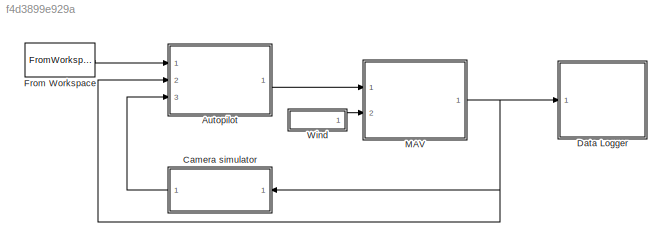
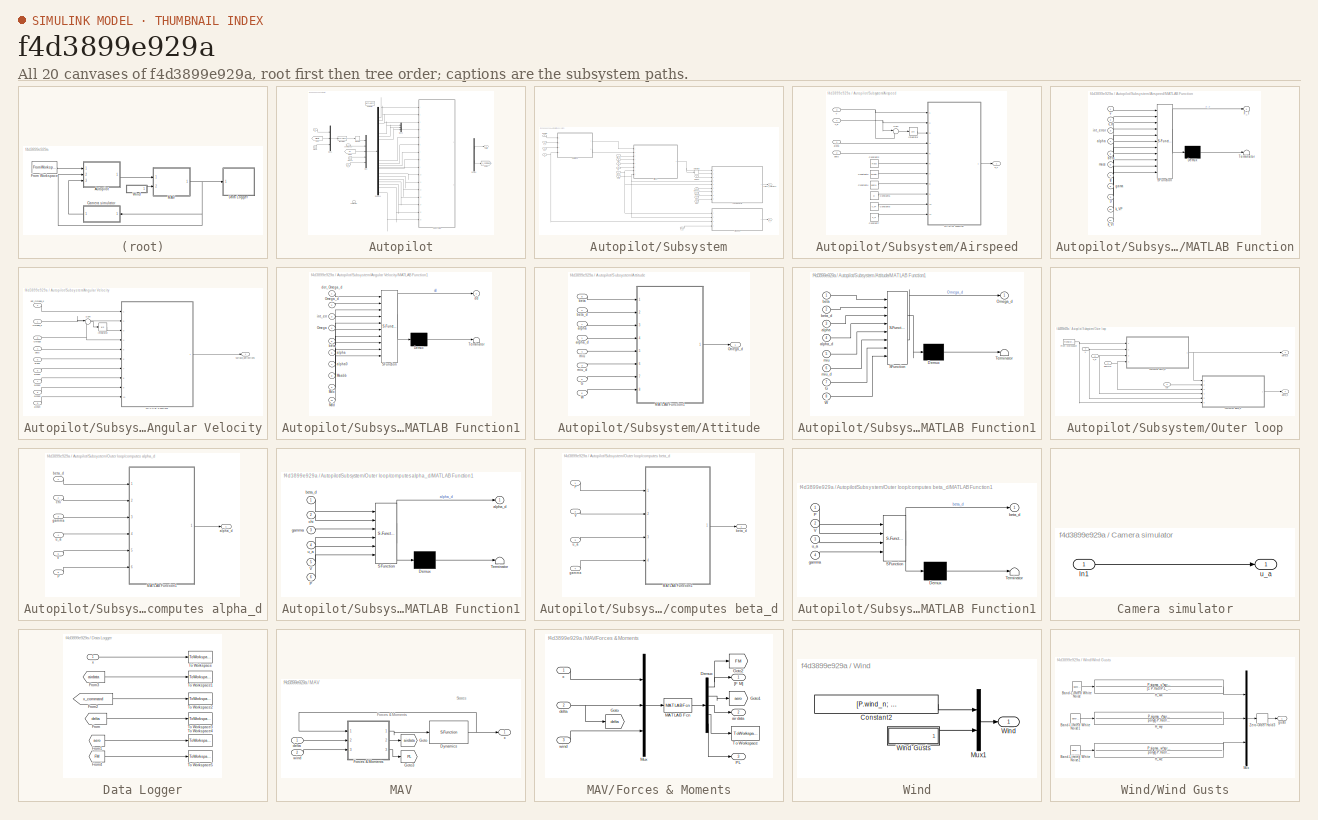
[diagram: thumbnail index - all 20 canvases of the model, root first then tree order]
MODEL slx_f4d3899e929a
KIND model
CONFIG AbsTol = 1e-3
CONFIG EnableMultiTasking = on
CONFIG FixedStep = P.Ts
CONFIG MaxStep = auto
CONFIG MinStep = auto
CONFIG RelTol = 1e-6
CONFIG SampleTimeConstraint = Unconstrained
CONFIG SolverName = ode4
CONFIG StartTime = 0.0
CONFIG StopTime = T
BLOCK [SubSystem] Autopilot
  Ports = [3, 1]
  RequestExecContextInheritance = off
BLOCK [Clock] Autopilot/Clock
BLOCK [Clock] Autopilot/Clock1
BLOCK [Demux] Autopilot/Demux
  Outputs = [4;2]
  Ports = [1, 2]
BLOCK [Demux] Autopilot/Demux1
  Outputs = 19+1+10+1+1
  Ports = [1, 32]
BLOCK [From] Autopilot/From
  GotoTag = airdata
  TagVisibility = global
BLOCK [From] Autopilot/From1
  GotoTag = PL
  TagVisibility = global
BLOCK [Goto] Autopilot/Goto1
  GotoTag = x_command
  TagVisibility = global
BLOCK [Memory] Autopilot/Memory
BLOCK [Mux] Autopilot/Mux
  DisplayOption = bar
  Inputs = 5
  Ports = [5, 1]
BLOCK [Mux] Autopilot/Mux1
  DisplayOption = bar
  Inputs = 3
  Ports = [3, 1]
BLOCK [Mux] Autopilot/Mux2
  DisplayOption = bar
  Inputs = 3
  Ports = [3, 1]
BLOCK [SubSystem] Autopilot/Subsystem
  Ports = [16, 2]
  RequestExecContextInheritance = off
BLOCK [SubSystem] Autopilot/Subsystem/Airspeed
  Ports = [4, 1]
  RequestExecContextInheritance = off
BLOCK [Constant] Autopilot/Subsystem/Airspeed/Constant2
  Value = mass
BLOCK [Constant] Autopilot/Subsystem/Airspeed/Constant3
  Value = gravity
BLOCK [Constant] Autopilot/Subsystem/Airspeed/Constant4
  Value = gama
BLOCK [Constant] Autopilot/Subsystem/Airspeed/Constant5
  Value = D
BLOCK [Constant] Autopilot/Subsystem/Airspeed/Constant6
  Value = k_VP
BLOCK [Constant] Autopilot/Subsystem/Airspeed/Constant7
  Value = k_VI
BLOCK [Outport] Autopilot/Subsystem/Airspeed/F_T 
  VectorParamsAs1DForOutWhenUnconnected = off
BLOCK [Integrator] Autopilot/Subsystem/Airspeed/Integrator
  Ports = [1, 1]
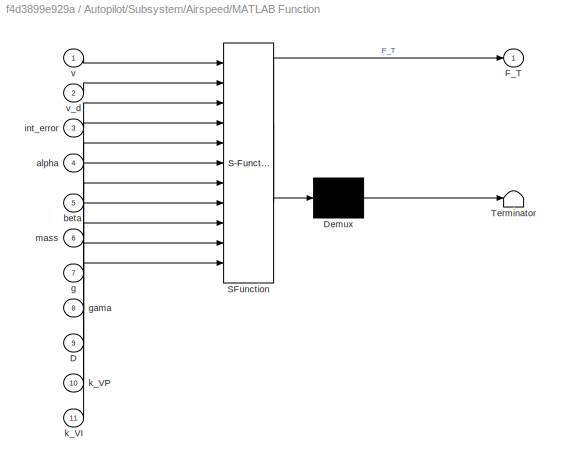
BLOCK [SubSystem] Autopilot/Subsystem/Airspeed/MATLAB Function
  ErrorFcn = Stateflow.Translate.translate
  PermitHierarchicalResolution = ExplicitOnly
  Ports = [11, 1]
  RequestExecContextInheritance = off
  SFBlockType = MATLAB Function
  TreatAsAtomicUnit = on
BLOCK [Demux] Autopilot/Subsystem/Airspeed/MATLAB Function/ Demux 
  Outputs = 1
  Ports = [1, 1]
BLOCK [S-Function] Autopilot/Subsystem/Airspeed/MATLAB Function/ SFunction 
  EnableBusSupport = off
  FunctionName = sf_sfun
  PortCounts = [11 2]
  Ports = [11, 2]
  SFcnIsStateOwnerBlock = off
  SFunctionDeploymentMode = off
  Tag = Stateflow S-Function 6
BLOCK [Terminator] Autopilot/Subsystem/Airspeed/MATLAB Function/ Terminator 
BLOCK [Inport] Autopilot/Subsystem/Airspeed/MATLAB Function/D
  Port = 9
BLOCK [Outport] Autopilot/Subsystem/Airspeed/MATLAB Function/F_T
  VectorParamsAs1DForOutWhenUnconnected = off
BLOCK [Inport] Autopilot/Subsystem/Airspeed/MATLAB Function/alpha
  Port = 4
BLOCK [Inport] Autopilot/Subsystem/Airspeed/MATLAB Function/beta
  Port = 5
BLOCK [Inport] Autopilot/Subsystem/Airspeed/MATLAB Function/g
  Port = 7
BLOCK [Inport] Autopilot/Subsystem/Airspeed/MATLAB Function/gama
  Port = 8
BLOCK [Inport] Autopilot/Subsystem/Airspeed/MATLAB Function/int_error
  Port = 3
BLOCK [Inport] Autopilot/Subsystem/Airspeed/MATLAB Function/k_VI
  Port = 11
BLOCK [Inport] Autopilot/Subsystem/Airspeed/MATLAB Function/k_VP
  Port = 10
BLOCK [Inport] Autopilot/Subsystem/Airspeed/MATLAB Function/mass
  Port = 6
BLOCK [Inport] Autopilot/Subsystem/Airspeed/MATLAB Function/v
BLOCK [Inport] Autopilot/Subsystem/Airspeed/MATLAB Function/v_d
  Port = 2
BLOCK [Sum] Autopilot/Subsystem/Airspeed/Sum
  Inputs = |-+
  Ports = [2, 1]
BLOCK [Inport] Autopilot/Subsystem/Airspeed/alpha
BLOCK [Inport] Autopilot/Subsystem/Airspeed/beta
  Port = 2
BLOCK [Inport] Autopilot/Subsystem/Airspeed/v 
  Port = 3
BLOCK [Inport] Autopilot/Subsystem/Airspeed/v_d
  Port = 4
BLOCK [SubSystem] Autopilot/Subsystem/Angular Velocity
  Ports = [9, 1]
  RequestExecContextInheritance = off
BLOCK [Integrator] Autopilot/Subsystem/Angular Velocity/Integrator
  Ports = [1, 1]
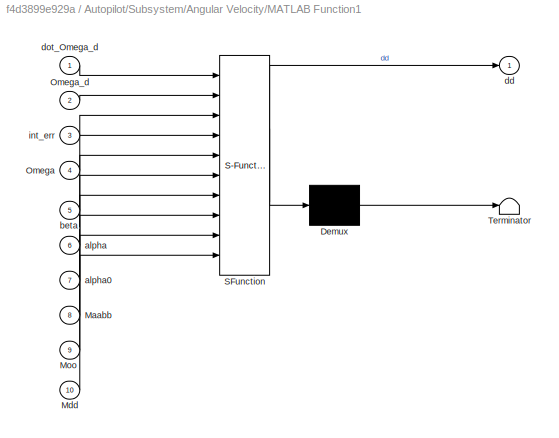
BLOCK [SubSystem] Autopilot/Subsystem/Angular Velocity/MATLAB Function1
  ErrorFcn = Stateflow.Translate.translate
  PermitHierarchicalResolution = ExplicitOnly
  Ports = [10, 1]
  RequestExecContextInheritance = off
  SFBlockType = MATLAB Function
  TreatAsAtomicUnit = on
BLOCK [Demux] Autopilot/Subsystem/Angular Velocity/MATLAB Function1/ Demux 
  Outputs = 1
  Ports = [1, 1]
BLOCK [S-Function] Autopilot/Subsystem/Angular Velocity/MATLAB Function1/ SFunction 
  EnableBusSupport = off
  FunctionName = sf_sfun
  PortCounts = [10 2]
  Ports = [10, 2]
  SFcnIsStateOwnerBlock = off
  SFunctionDeploymentMode = off
  Tag = Stateflow S-Function 7
BLOCK [Terminator] Autopilot/Subsystem/Angular Velocity/MATLAB Function1/ Terminator 
BLOCK [Inport] Autopilot/Subsystem/Angular Velocity/MATLAB Function1/Maabb
  Port = 8
BLOCK [Inport] Autopilot/Subsystem/Angular Velocity/MATLAB Function1/Mdd
  Port = 10
BLOCK [Inport] Autopilot/Subsystem/Angular Velocity/MATLAB Function1/Moo
  Port = 9
BLOCK [Inport] Autopilot/Subsystem/Angular Velocity/MATLAB Function1/Omega
  Port = 4
BLOCK [Inport] Autopilot/Subsystem/Angular Velocity/MATLAB Function1/Omega_d
  Port = 2
BLOCK [Inport] Autopilot/Subsystem/Angular Velocity/MATLAB Function1/alpha
  Port = 6
BLOCK [Inport] Autopilot/Subsystem/Angular Velocity/MATLAB Function1/alpha0
  Port = 7
BLOCK [Inport] Autopilot/Subsystem/Angular Velocity/MATLAB Function1/beta
  Port = 5
BLOCK [Outport] Autopilot/Subsystem/Angular Velocity/MATLAB Function1/dd
  VectorParamsAs1DForOutWhenUnconnected = off
BLOCK [Inport] Autopilot/Subsystem/Angular Velocity/MATLAB Function1/dot_Omega_d
BLOCK [Inport] Autopilot/Subsystem/Angular Velocity/MATLAB Function1/int_err
  Port = 3
BLOCK [Inport] Autopilot/Subsystem/Angular Velocity/Omega
  Port = 3
BLOCK [Inport] Autopilot/Subsystem/Angular Velocity/Omega_d
BLOCK [Sum] Autopilot/Subsystem/Angular Velocity/Sum
  Inputs = |-+
  Ports = [2, 1]
BLOCK [Inport] Autopilot/Subsystem/Angular Velocity/alpha
  Port = 5
BLOCK [Inport] Autopilot/Subsystem/Angular Velocity/alpha1
  Port = 6
BLOCK [Inport] Autopilot/Subsystem/Angular Velocity/alpha2
  Port = 7
BLOCK [Inport] Autopilot/Subsystem/Angular Velocity/alpha3
  Port = 8
BLOCK [Inport] Autopilot/Subsystem/Angular Velocity/alpha4
  Port = 9
BLOCK [Inport] Autopilot/Subsystem/Angular Velocity/beta
  Port = 4
BLOCK [Inport] Autopilot/Subsystem/Angular Velocity/dot_Omega_d
  Port = 2
BLOCK [Outport] Autopilot/Subsystem/Angular Velocity/surface_deflections
  VectorParamsAs1DForOutWhenUnconnected = off
BLOCK [SubSystem] Autopilot/Subsystem/Attitude
  Ports = [8, 1]
  RequestExecContextInheritance = off
BLOCK [Inport] Autopilot/Subsystem/Attitude/G
  Port = 5
BLOCK [SubSystem] Autopilot/Subsystem/Attitude/MATLAB Function1
  ErrorFcn = Stateflow.Translate.translate
  PermitHierarchicalResolution = ExplicitOnly
  Ports = [8, 1]
  RequestExecContextInheritance = off
  SFBlockType = MATLAB Function
  TreatAsAtomicUnit = on
BLOCK [Demux] Autopilot/Subsystem/Attitude/MATLAB Function1/ Demux 
  Outputs = 1
  Ports = [1, 1]
BLOCK [S-Function] Autopilot/Subsystem/Attitude/MATLAB Function1/ SFunction 
  EnableBusSupport = off
  FunctionName = sf_sfun
  PortCounts = [8 2]
  Ports = [8, 2]
  SFcnIsStateOwnerBlock = off
  SFunctionDeploymentMode = off
  Tag = Stateflow S-Function 8
BLOCK [Terminator] Autopilot/Subsystem/Attitude/MATLAB Function1/ Terminator 
BLOCK [Inport] Autopilot/Subsystem/Attitude/MATLAB Function1/G
  Port = 7
BLOCK [Outport] Autopilot/Subsystem/Attitude/MATLAB Function1/Omega_d
  VectorParamsAs1DForOutWhenUnconnected = off
BLOCK [Inport] Autopilot/Subsystem/Attitude/MATLAB Function1/W
  Port = 8
BLOCK [Inport] Autopilot/Subsystem/Attitude/MATLAB Function1/alpha
  Port = 3
BLOCK [Inport] Autopilot/Subsystem/Attitude/MATLAB Function1/alpha_d
  Port = 4
BLOCK [Inport] Autopilot/Subsystem/Attitude/MATLAB Function1/beta
BLOCK [Inport] Autopilot/Subsystem/Attitude/MATLAB Function1/beta_d
  Port = 2
BLOCK [Inport] Autopilot/Subsystem/Attitude/MATLAB Function1/miu
  Port = 5
BLOCK [Inport] Autopilot/Subsystem/Attitude/MATLAB Function1/miu_d
  Port = 6
BLOCK [Outport] Autopilot/Subsystem/Attitude/Omega_d
  VectorParamsAs1DForOutWhenUnconnected = off
BLOCK [Inport] Autopilot/Subsystem/Attitude/W
  Port = 6
BLOCK [Inport] Autopilot/Subsystem/Attitude/alpha
  Port = 7
BLOCK [Inport] Autopilot/Subsystem/Attitude/alpha_d
BLOCK [Inport] Autopilot/Subsystem/Attitude/beta
  Port = 8
BLOCK [Inport] Autopilot/Subsystem/Attitude/beta_d
  Port = 2
BLOCK [Inport] Autopilot/Subsystem/Attitude/miu
  Port = 4
BLOCK [Inport] Autopilot/Subsystem/Attitude/miu_d
  Port = 3
BLOCK [Derivative] Autopilot/Subsystem/Derivative
BLOCK [Outport] Autopilot/Subsystem/F_T 
  Port = 2
  VectorParamsAs1DForOutWhenUnconnected = off
BLOCK [Inport] Autopilot/Subsystem/G
  Port = 9
BLOCK [Inport] Autopilot/Subsystem/Maabb
  Port = 13
BLOCK [Inport] Autopilot/Subsystem/Mdd
  Port = 15
BLOCK [Inport] Autopilot/Subsystem/Moo
  Port = 14
BLOCK [Inport] Autopilot/Subsystem/Omega 
  Port = 4
BLOCK [SubSystem] Autopilot/Subsystem/Outer loop
  Ports = [4, 2]
  RequestExecContextInheritance = off
BLOCK [FromWorkspace] Autopilot/Subsystem/Outer loop/From Workspace
  VariableName = P
BLOCK [Inport] Autopilot/Subsystem/Outer loop/V
  Port = 4
BLOCK [Outport] Autopilot/Subsystem/Outer loop/alpha_d
BLOCK [Outport] Autopilot/Subsystem/Outer loop/beta_d
  Port = 2
BLOCK [Inport] Autopilot/Subsystem/Outer loop/chi
  Port = 3
BLOCK [SubSystem] Autopilot/Subsystem/Outer loop/computes alpha_d
  Ports = [6, 1]
  RequestExecContextInheritance = off
BLOCK [SubSystem] Autopilot/Subsystem/Outer loop/computes alpha_d/MATLAB Function1
  ErrorFcn = Stateflow.Translate.translate
  PermitHierarchicalResolution = ExplicitOnly
  Ports = [6, 1]
  RequestExecContextInheritance = off
  SFBlockType = MATLAB Function
  TreatAsAtomicUnit = on
BLOCK [Demux] Autopilot/Subsystem/Outer loop/computes alpha_d/MATLAB Function1/ Demux 
  Outputs = 1
  Ports = [1, 1]
BLOCK [S-Function] Autopilot/Subsystem/Outer loop/computes alpha_d/MATLAB Function1/ SFunction 
  EnableBusSupport = off
  FunctionName = sf_sfun
  PortCounts = [6 2]
  Ports = [6, 2]
  SFcnIsStateOwnerBlock = off
  SFunctionDeploymentMode = off
  Tag = Stateflow S-Function 9
BLOCK [Terminator] Autopilot/Subsystem/Outer loop/computes alpha_d/MATLAB Function1/ Terminator 
BLOCK [Inport] Autopilot/Subsystem/Outer loop/computes alpha_d/MATLAB Function1/P
  Port = 6
BLOCK [Inport] Autopilot/Subsystem/Outer loop/computes alpha_d/MATLAB Function1/V
  Port = 5
BLOCK [Outport] Autopilot/Subsystem/Outer loop/computes alpha_d/MATLAB Function1/alpha_d
  VectorParamsAs1DForOutWhenUnconnected = off
BLOCK [Inport] Autopilot/Subsystem/Outer loop/computes alpha_d/MATLAB Function1/beta_d
BLOCK [Inport] Autopilot/Subsystem/Outer loop/computes alpha_d/MATLAB Function1/chi
  Port = 2
BLOCK [Inport] Autopilot/Subsystem/Outer loop/computes alpha_d/MATLAB Function1/gamma
  Port = 3
BLOCK [Inport] Autopilot/Subsystem/Outer loop/computes alpha_d/MATLAB Function1/u_a
  Port = 4
BLOCK [Inport] Autopilot/Subsystem/Outer loop/computes alpha_d/P
  Port = 6
BLOCK [Inport] Autopilot/Subsystem/Outer loop/computes alpha_d/V
  Port = 5
BLOCK [Outport] Autopilot/Subsystem/Outer loop/computes alpha_d/alpha_d
  VectorParamsAs1DForOutWhenUnconnected = off
BLOCK [Inport] Autopilot/Subsystem/Outer loop/computes alpha_d/beta_d
BLOCK [Inport] Autopilot/Subsystem/Outer loop/computes alpha_d/chi
  Port = 2
BLOCK [Inport] Autopilot/Subsystem/Outer loop/computes alpha_d/gamma
  Port = 3
BLOCK [Inport] Autopilot/Subsystem/Outer loop/computes alpha_d/u_a
  Port = 4
BLOCK [SubSystem] Autopilot/Subsystem/Outer loop/computes beta_d
  Ports = [4, 1]
  RequestExecContextInheritance = off
BLOCK [SubSystem] Autopilot/Subsystem/Outer loop/computes beta_d/MATLAB Function1
  ErrorFcn = Stateflow.Translate.translate
  PermitHierarchicalResolution = ExplicitOnly
  Ports = [4, 1]
  RequestExecContextInheritance = off
  SFBlockType = MATLAB Function
  TreatAsAtomicUnit = on
BLOCK [Demux] Autopilot/Subsystem/Outer loop/computes beta_d/MATLAB Function1/ Demux 
  Outputs = 1
  Ports = [1, 1]
BLOCK [S-Function] Autopilot/Subsystem/Outer loop/computes beta_d/MATLAB Function1/ SFunction 
  EnableBusSupport = off
  FunctionName = sf_sfun
  PortCounts = [4 2]
  Ports = [4, 2]
  SFcnIsStateOwnerBlock = off
  SFunctionDeploymentMode = off
  Tag = Stateflow S-Function 10
BLOCK [Terminator] Autopilot/Subsystem/Outer loop/computes beta_d/MATLAB Function1/ Terminator 
BLOCK [Inport] Autopilot/Subsystem/Outer loop/computes beta_d/MATLAB Function1/P
BLOCK [Inport] Autopilot/Subsystem/Outer loop/computes beta_d/MATLAB Function1/V
  Port = 2
BLOCK [Outport] Autopilot/Subsystem/Outer loop/computes beta_d/MATLAB Function1/beta_d
  VectorParamsAs1DForOutWhenUnconnected = off
BLOCK [Inport] Autopilot/Subsystem/Outer loop/computes beta_d/MATLAB Function1/gamma
  Port = 4
BLOCK [Inport] Autopilot/Subsystem/Outer loop/computes beta_d/MATLAB Function1/u_a
  Port = 3
BLOCK [Inport] Autopilot/Subsystem/Outer loop/computes beta_d/P
BLOCK [Inport] Autopilot/Subsystem/Outer loop/computes beta_d/V
  Port = 2
BLOCK [Outport] Autopilot/Subsystem/Outer loop/computes beta_d/beta_d
  VectorParamsAs1DForOutWhenUnconnected = off
BLOCK [Inport] Autopilot/Subsystem/Outer loop/computes beta_d/gamma
  Port = 4
BLOCK [Inport] Autopilot/Subsystem/Outer loop/computes beta_d/u_a
  Port = 3
BLOCK [Inport] Autopilot/Subsystem/Outer loop/gamma
BLOCK [Inport] Autopilot/Subsystem/Outer loop/u_a
  Port = 2
BLOCK [Inport] Autopilot/Subsystem/V
BLOCK [Inport] Autopilot/Subsystem/W
  Port = 10
BLOCK [Inport] Autopilot/Subsystem/alpha
  Port = 2
BLOCK [Inport] Autopilot/Subsystem/alpha0 1
  Port = 12
BLOCK [Inport] Autopilot/Subsystem/beta
  Port = 3
BLOCK [Inport] Autopilot/Subsystem/chi
  Port = 11
BLOCK [Inport] Autopilot/Subsystem/gamma
  Port = 8
BLOCK [Inport] Autopilot/Subsystem/miu
  Port = 6
BLOCK [Inport] Autopilot/Subsystem/miu_d
  Port = 7
BLOCK [Outport] Autopilot/Subsystem/surface_deflections
  VectorParamsAs1DForOutWhenUnconnected = off
BLOCK [Inport] Autopilot/Subsystem/u_a
  Port = 16
BLOCK [Inport] Autopilot/Subsystem/v_d
  Port = 5
BLOCK [Terminator] Autopilot/Terminator
BLOCK [MATLABFcn] Autopilot/autopilot
  MATLABFcn = autopilot(u,P)
  OutputDimensions = 4+2
  Ports = [1, 1]
  SampleTime = P.Ts
BLOCK [Inport] Autopilot/commands
BLOCK [Outport] Autopilot/delta
  VectorParamsAs1DForOutWhenUnconnected = off
BLOCK [MATLABFcn] Autopilot/true states
  MATLABFcn = true_states(u,P)
  OutputDimensions = 19
  Ports = [1, 1]
  SampleTime = P.Ts
BLOCK [Inport] Autopilot/u_a
  Port = 3
BLOCK [Inport] Autopilot/x
  Port = 2
BLOCK [SubSystem] Camera simulator
  NameLocation = top
  Ports = [1, 1]
  RequestExecContextInheritance = off
BLOCK [Inport] Camera simulator/In1
BLOCK [Outport] Camera simulator/u_a
BLOCK [SubSystem] Data Logger
  Ports = [1]
  RequestExecContextInheritance = off
BLOCK [From] Data Logger/From
  GotoTag = delta
  IconDisplay = Tag and signal name
  TagVisibility = global
BLOCK [From] Data Logger/From1
  GotoTag = aero
  TagVisibility = global
BLOCK [From] Data Logger/From2
  GotoTag = x_command
  IconDisplay = Tag and signal name
  TagVisibility = global
BLOCK [From] Data Logger/From3
  GotoTag = airdata
  IconDisplay = Tag and signal name
  TagVisibility = global
BLOCK [From] Data Logger/From4
  GotoTag = FM
  TagVisibility = global
BLOCK [ToWorkspace] Data Logger/To Workspace
  FixptAsFi = on
  MaxDataPoints = inf
  Ports = [1]
  SampleTime = -1
  SaveFormat = Structure With Time
  VariableName = state
BLOCK [ToWorkspace] Data Logger/To Workspace1
  FixptAsFi = on
  MaxDataPoints = inf
  Ports = [1]
  SampleTime = -1
  SaveFormat = Structure With Time
  VariableName = airdata
BLOCK [ToWorkspace] Data Logger/To Workspace2
  FixptAsFi = on
  MaxDataPoints = inf
  Ports = [1]
  SampleTime = -1
  SaveFormat = Structure With Time
  VariableName = x_command
BLOCK [ToWorkspace] Data Logger/To Workspace3
  FixptAsFi = on
  MaxDataPoints = inf
  Ports = [1]
  SampleTime = -1
  SaveFormat = Structure With Time
  VariableName = delta
BLOCK [ToWorkspace] Data Logger/To Workspace4
  FixptAsFi = on
  MaxDataPoints = inf
  Ports = [1]
  SampleTime = -1
  SaveFormat = Structure With Time
  VariableName = aero
BLOCK [ToWorkspace] Data Logger/To Workspace5
  FixptAsFi = on
  MaxDataPoints = inf
  Ports = [1]
  SampleTime = -1
  SaveFormat = Structure With Time
  VariableName = FM
BLOCK [Inport] Data Logger/x
BLOCK [FromWorkspace] From Workspace
  VariableName = reference
BLOCK [SubSystem] MAV
  Ports = [2, 1]
  RequestExecContextInheritance = off
BLOCK [S-Function] MAV/Dynamics
  EnableBusSupport = off
  FunctionName = mav_dynamics
  Parameters = P
  Ports = [1, 1]
  SFcnIsStateOwnerBlock = off
  SFunctionDeploymentMode = off
BLOCK [SubSystem] MAV/Forces & Moments
  Ports = [3, 3]
  RequestExecContextInheritance = off
BLOCK [Demux] MAV/Forces & Moments/Demux
  Outputs = [6;6;6;1;8]
  Ports = [1, 5]
BLOCK [Goto] MAV/Forces & Moments/Goto
  GotoTag = delta
  TagVisibility = global
BLOCK [Goto] MAV/Forces & Moments/Goto1
  GotoTag = aero
  TagVisibility = global
BLOCK [Goto] MAV/Forces & Moments/Goto2
  GotoTag = FM
  TagVisibility = global
BLOCK [MATLABFcn] MAV/Forces & Moments/MATLAB Fcn
  MATLABFcn = forces_moments(u(1:12),u(13:16),u(17:22),P)
  OutputDimensions = 19
  Ports = [1, 1]
BLOCK [Mux] MAV/Forces & Moments/Mux
  DisplayOption = bar
  Inputs = 3
  Ports = [3, 1]
BLOCK [Outport] MAV/Forces & Moments/PL
  Port = 3
  VectorParamsAs1DForOutWhenUnconnected = off
BLOCK [ToWorkspace] MAV/Forces & Moments/To Workspace
  FixptAsFi = on
  MaxDataPoints = inf
  Ports = [1]
  SampleTime = -1
  VariableName = u_r
BLOCK [Outport] MAV/Forces & Moments/[F M]
  VectorParamsAs1DForOutWhenUnconnected = off
BLOCK [Outport] MAV/Forces & Moments/air data
  Port = 2
  VectorParamsAs1DForOutWhenUnconnected = off
BLOCK [Inport] MAV/Forces & Moments/delta
  Port = 2
BLOCK [Inport] MAV/Forces & Moments/wind
  Port = 3
BLOCK [Inport] MAV/Forces & Moments/x
BLOCK [Goto] MAV/Goto
  GotoTag = airdata
  TagVisibility = global
BLOCK [Goto] MAV/Goto3
  GotoTag = PL
  TagVisibility = global
BLOCK [Inport] MAV/delta
BLOCK [Inport] MAV/wind
  Port = 2
BLOCK [Outport] MAV/x
  VectorParamsAs1DForOutWhenUnconnected = off
BLOCK [SubSystem] Wind
  Ports = [0, 1]
  RequestExecContextInheritance = off
BLOCK [Constant] Wind/Constant2
  Value = [P.wind_n; P.wind_e; P.wind_d]
BLOCK [Mux] Wind/Mux1
  DisplayOption = bar
  Inputs = 2
  Ports = [2, 1]
BLOCK [Outport] Wind/Wind
  VectorParamsAs1DForOutWhenUnconnected = off
BLOCK [SubSystem] Wind/Wind Gusts
  Ports = [0, 1]
  RequestExecContextInheritance = off
BLOCK [Reference] Wind/Wind Gusts/Band-Limited White Noise  REF=simulink/Sources/Band-Limited
White Noise
  Ports = [0, 1]
  SourceBlock = simulink/Sources/Band-Limited\nWhite Noise
  SourceProductBaseCode = SL
  SourceType = Band-Limited White Noise.
BLOCK [Reference] Wind/Wind Gusts/Band-Limited White Noise1  REF=simulink/Sources/Band-Limited
White Noise
  Ports = [0, 1]
  SourceBlock = simulink/Sources/Band-Limited\nWhite Noise
  SourceProductBaseCode = SL
  SourceType = Band-Limited White Noise.
BLOCK [Reference] Wind/Wind Gusts/Band-Limited White Noise2  REF=simulink/Sources/Band-Limited
White Noise
  Ports = [0, 1]
  SourceBlock = simulink/Sources/Band-Limited\nWhite Noise
  SourceProductBaseCode = SL
  SourceType = Band-Limited White Noise.
BLOCK [TransferFcn] Wind/Wind Gusts/H_wx
  Denominator = [1 P.Va0/P.L_u]
  Numerator = P.sigma_u*sqrt(2*P.Va0/P.L_u)
BLOCK [TransferFcn] Wind/Wind Gusts/H_wy
  Denominator = poly([-P.Va0/P.L_v, -P.Va0/P.L_v])
  Numerator = P.sigma_v*sqrt(3*P.Va0/P.L_v)*[0, 1, P.Va0/sqrt(3)/P.L_v]
BLOCK [TransferFcn] Wind/Wind Gusts/H_wz
  Denominator = poly([-P.Va0/P.L_w, -P.Va0/P.L_w])
  Numerator = P.sigma_w*sqrt(3*P.Va0/P.L_w)*[0, 1, P.Va0/sqrt(3)/P.L_w]
BLOCK [Mux] Wind/Wind Gusts/Mux
  DisplayOption = bar
  Inputs = 3
  Ports = [3, 1]
BLOCK [ZeroOrderHold] Wind/Wind Gusts/Zero-Order Hold3
  SampleTime = P.Ts
BLOCK [Outport] Wind/Wind Gusts/gusts
  VectorParamsAs1DForOutWhenUnconnected = off
ANNOTATION MAV: Forces & Moments
ANNOTATION MAV: States
LINE Autopilot/Clock1:1 -> Autopilot/Mux:4
LINE Autopilot/Clock:1 -> Autopilot/Mux1:3
LINE Autopilot/Demux1:10 -> Autopilot/Mux2:1
LINE Autopilot/Demux1:11 -> Autopilot/Mux2:2
LINE Autopilot/Demux1:12 -> Autopilot/Mux2:3
LINE Autopilot/Demux1:20 -> Autopilot/Subsystem:5
LINE Autopilot/Demux1:21 -> Autopilot/Subsystem:6
LINE Autopilot/Demux1:22 -> Autopilot/Subsystem:7
LINE Autopilot/Demux1:23 -> Autopilot/Subsystem:8
LINE Autopilot/Demux1:24 -> Autopilot/Subsystem:9
LINE Autopilot/Demux1:25 -> Autopilot/Subsystem:10
LINE Autopilot/Demux1:26 -> Autopilot/Subsystem:11
LINE Autopilot/Demux1:27 -> Autopilot/Subsystem:12
LINE Autopilot/Demux1:28 -> Autopilot/Subsystem:13
LINE Autopilot/Demux1:29 -> Autopilot/Subsystem:14
LINE Autopilot/Demux1:30 -> Autopilot/Subsystem:15
LINE Autopilot/Demux1:32 -> Autopilot/Subsystem:16
LINE Autopilot/Demux1:4 -> Autopilot/Subsystem:1
LINE Autopilot/Demux1:5 -> Autopilot/Subsystem:2
LINE Autopilot/Demux1:6 -> Autopilot/Subsystem:3
LINE Autopilot/Demux:1 -> Autopilot/delta:1
LINE Autopilot/Demux:2 -> Autopilot/Goto1:1
LINE Autopilot/From1:1 -> Autopilot/Mux:3
LINE Autopilot/From:1 -> Autopilot/Mux1:2
LINE Autopilot/Memory:1 -> Autopilot/Mux:1
LINE Autopilot/Mux1:1 -> Autopilot/true states:1
LINE Autopilot/Mux2:1 -> Autopilot/Subsystem:4
LINE Autopilot/Mux:1 -> Autopilot/Demux1:1
LINE Autopilot/Subsystem/Airspeed/Constant2:1 -> Autopilot/Subsystem/Airspeed/MATLAB Function:6
LINE Autopilot/Subsystem/Airspeed/Constant3:1 -> Autopilot/Subsystem/Airspeed/MATLAB Function:7
LINE Autopilot/Subsystem/Airspeed/Constant4:1 -> Autopilot/Subsystem/Airspeed/MATLAB Function:8
LINE Autopilot/Subsystem/Airspeed/Constant5:1 -> Autopilot/Subsystem/Airspeed/MATLAB Function:9
LINE Autopilot/Subsystem/Airspeed/Constant6:1 -> Autopilot/Subsystem/Airspeed/MATLAB Function:10
LINE Autopilot/Subsystem/Airspeed/Constant7:1 -> Autopilot/Subsystem/Airspeed/MATLAB Function:11
LINE Autopilot/Subsystem/Airspeed/Integrator:1 -> Autopilot/Subsystem/Airspeed/MATLAB Function:3
LINE Autopilot/Subsystem/Airspeed/MATLAB Function:1 -> Autopilot/Subsystem/Airspeed/F_T :1
LINE Autopilot/Subsystem/Airspeed/Sum:1 -> Autopilot/Subsystem/Airspeed/Integrator:1
LINE Autopilot/Subsystem/Airspeed/alpha:1 -> Autopilot/Subsystem/Airspeed/MATLAB Function:4
LINE Autopilot/Subsystem/Airspeed/beta:1 -> Autopilot/Subsystem/Airspeed/MATLAB Function:5
NET Autopilot/Subsystem/Airspeed/v :1 -> Autopilot/Subsystem/Airspeed/MATLAB Function:1, Autopilot/Subsystem/Airspeed/Sum:2
NET Autopilot/Subsystem/Airspeed/v_d:1 -> Autopilot/Subsystem/Airspeed/MATLAB Function:2, Autopilot/Subsystem/Airspeed/Sum:1
LINE Autopilot/Subsystem/Airspeed:1 -> Autopilot/Subsystem/F_T :1
LINE Autopilot/Subsystem/Angular Velocity/Integrator:1 -> Autopilot/Subsystem/Angular Velocity/MATLAB Function1:3
LINE Autopilot/Subsystem/Angular Velocity/MATLAB Function1:1 -> Autopilot/Subsystem/Angular Velocity/surface_deflections:1
NET Autopilot/Subsystem/Angular Velocity/Omega:1 -> Autopilot/Subsystem/Angular Velocity/MATLAB Function1:4, Autopilot/Subsystem/Angular Velocity/Sum:2
NET Autopilot/Subsystem/Angular Velocity/Omega_d:1 -> Autopilot/Subsystem/Angular Velocity/MATLAB Function1:2, Autopilot/Subsystem/Angular Velocity/Sum:1
LINE Autopilot/Subsystem/Angular Velocity/Sum:1 -> Autopilot/Subsystem/Angular Velocity/Integrator:1
LINE Autopilot/Subsystem/Angular Velocity/alpha1:1 -> Autopilot/Subsystem/Angular Velocity/MATLAB Function1:7
LINE Autopilot/Subsystem/Angular Velocity/alpha2:1 -> Autopilot/Subsystem/Angular Velocity/MATLAB Function1:8
LINE Autopilot/Subsystem/Angular Velocity/alpha3:1 -> Autopilot/Subsystem/Angular Velocity/MATLAB Function1:9
LINE Autopilot/Subsystem/Angular Velocity/alpha4:1 -> Autopilot/Subsystem/Angular Velocity/MATLAB Function1:10
LINE Autopilot/Subsystem/Angular Velocity/alpha:1 -> Autopilot/Subsystem/Angular Velocity/MATLAB Function1:6
LINE Autopilot/Subsystem/Angular Velocity/beta:1 -> Autopilot/Subsystem/Angular Velocity/MATLAB Function1:5
LINE Autopilot/Subsystem/Angular Velocity/dot_Omega_d:1 -> Autopilot/Subsystem/Angular Velocity/MATLAB Function1:1
LINE Autopilot/Subsystem/Angular Velocity:1 -> Autopilot/Subsystem/surface_deflections:1
LINE Autopilot/Subsystem/Attitude/G:1 -> Autopilot/Subsystem/Attitude/MATLAB Function1:7
LINE Autopilot/Subsystem/Attitude/MATLAB Function1:1 -> Autopilot/Subsystem/Attitude/Omega_d:1
LINE Autopilot/Subsystem/Attitude/W:1 -> Autopilot/Subsystem/Attitude/MATLAB Function1:8
LINE Autopilot/Subsystem/Attitude/alpha:1 -> Autopilot/Subsystem/Attitude/MATLAB Function1:3
LINE Autopilot/Subsystem/Attitude/alpha_d:1 -> Autopilot/Subsystem/Attitude/MATLAB Function1:4
LINE Autopilot/Subsystem/Attitude/beta:1 -> Autopilot/Subsystem/Attitude/MATLAB Function1:1
LINE Autopilot/Subsystem/Attitude/beta_d:1 -> Autopilot/Subsystem/Attitude/MATLAB Function1:2
LINE Autopilot/Subsystem/Attitude/miu:1 -> Autopilot/Subsystem/Attitude/MATLAB Function1:5
LINE Autopilot/Subsystem/Attitude/miu_d:1 -> Autopilot/Subsystem/Attitude/MATLAB Function1:6
NET Autopilot/Subsystem/Attitude:1 -> Autopilot/Subsystem/Angular Velocity:1, Autopilot/Subsystem/Derivative:1
LINE Autopilot/Subsystem/Derivative:1 -> Autopilot/Subsystem/Angular Velocity:2
LINE Autopilot/Subsystem/G:1 -> Autopilot/Subsystem/Attitude:5
LINE Autopilot/Subsystem/Maabb:1 -> Autopilot/Subsystem/Angular Velocity:7
LINE Autopilot/Subsystem/Mdd:1 -> Autopilot/Subsystem/Angular Velocity:9
LINE Autopilot/Subsystem/Moo:1 -> Autopilot/Subsystem/Angular Velocity:8
LINE Autopilot/Subsystem/Omega :1 -> Autopilot/Subsystem/Angular Velocity:3
NET Autopilot/Subsystem/Outer loop/From Workspace:1 -> Autopilot/Subsystem/Outer loop/computes alpha_d:6, Autopilot/Subsystem/Outer loop/computes beta_d:1
NET Autopilot/Subsystem/Outer loop/V:1 -> Autopilot/Subsystem/Outer loop/computes alpha_d:5, Autopilot/Subsystem/Outer loop/computes beta_d:2
LINE Autopilot/Subsystem/Outer loop/chi:1 -> Autopilot/Subsystem/Outer loop/computes alpha_d:2
LINE Autopilot/Subsystem/Outer loop/computes alpha_d/MATLAB Function1:1 -> Autopilot/Subsystem/Outer loop/computes alpha_d/alpha_d:1
LINE Autopilot/Subsystem/Outer loop/computes alpha_d/P:1 -> Autopilot/Subsystem/Outer loop/computes alpha_d/MATLAB Function1:6
LINE Autopilot/Subsystem/Outer loop/computes alpha_d/V:1 -> Autopilot/Subsystem/Outer loop/computes alpha_d/MATLAB Function1:5
LINE Autopilot/Subsystem/Outer loop/computes alpha_d/beta_d:1 -> Autopilot/Subsystem/Outer loop/computes alpha_d/MATLAB Function1:1
LINE Autopilot/Subsystem/Outer loop/computes alpha_d/chi:1 -> Autopilot/Subsystem/Outer loop/computes alpha_d/MATLAB Function1:2
LINE Autopilot/Subsystem/Outer loop/computes alpha_d/gamma:1 -> Autopilot/Subsystem/Outer loop/computes alpha_d/MATLAB Function1:3
LINE Autopilot/Subsystem/Outer loop/computes alpha_d/u_a:1 -> Autopilot/Subsystem/Outer loop/computes alpha_d/MATLAB Function1:4
LINE Autopilot/Subsystem/Outer loop/computes alpha_d:1 -> Autopilot/Subsystem/Outer loop/alpha_d:1
LINE Autopilot/Subsystem/Outer loop/computes beta_d/MATLAB Function1:1 -> Autopilot/Subsystem/Outer loop/computes beta_d/beta_d:1
LINE Autopilot/Subsystem/Outer loop/computes beta_d/P:1 -> Autopilot/Subsystem/Outer loop/computes beta_d/MATLAB Function1:1
LINE Autopilot/Subsystem/Outer loop/computes beta_d/V:1 -> Autopilot/Subsystem/Outer loop/computes beta_d/MATLAB Function1:2
LINE Autopilot/Subsystem/Outer loop/computes beta_d/gamma:1 -> Autopilot/Subsystem/Outer loop/computes beta_d/MATLAB Function1:4
LINE Autopilot/Subsystem/Outer loop/computes beta_d/u_a:1 -> Autopilot/Subsystem/Outer loop/computes beta_d/MATLAB Function1:3
NET Autopilot/Subsystem/Outer loop/computes beta_d:1 -> Autopilot/Subsystem/Outer loop/beta_d:1, Autopilot/Subsystem/Outer loop/computes alpha_d:1
NET Autopilot/Subsystem/Outer loop/gamma:1 -> Autopilot/Subsystem/Outer loop/computes alpha_d:3, Autopilot/Subsystem/Outer loop/computes beta_d:4
NET Autopilot/Subsystem/Outer loop/u_a:1 -> Autopilot/Subsystem/Outer loop/computes alpha_d:4, Autopilot/Subsystem/Outer loop/computes beta_d:3
LINE Autopilot/Subsystem/Outer loop:1 -> Autopilot/Subsystem/Attitude:1
LINE Autopilot/Subsystem/Outer loop:2 -> Autopilot/Subsystem/Attitude:2
NET Autopilot/Subsystem/V:1 -> Autopilot/Subsystem/Airspeed:3, Autopilot/Subsystem/Outer loop:4
LINE Autopilot/Subsystem/W:1 -> Autopilot/Subsystem/Attitude:6
LINE Autopilot/Subsystem/alpha0 1:1 -> Autopilot/Subsystem/Angular Velocity:6
NET Autopilot/Subsystem/alpha:1 -> Autopilot/Subsystem/Airspeed:1, Autopilot/Subsystem/Angular Velocity:5, Autopilot/Subsystem/Attitude:7
NET Autopilot/Subsystem/beta:1 -> Autopilot/Subsystem/Airspeed:2, Autopilot/Subsystem/Angular Velocity:4, Autopilot/Subsystem/Attitude:8
LINE Autopilot/Subsystem/chi:1 -> Autopilot/Subsystem/Outer loop:3
LINE Autopilot/Subsystem/gamma:1 -> Autopilot/Subsystem/Outer loop:1
LINE Autopilot/Subsystem/miu:1 -> Autopilot/Subsystem/Attitude:4
LINE Autopilot/Subsystem/miu_d:1 -> Autopilot/Subsystem/Attitude:3
LINE Autopilot/Subsystem/u_a:1 -> Autopilot/Subsystem/Outer loop:2
LINE Autopilot/Subsystem/v_d:1 -> Autopilot/Subsystem/Airspeed:4
LINE Autopilot/commands:1 -> Autopilot/Mux:2
LINE Autopilot/true states:1 -> Autopilot/Memory:1
LINE Autopilot/u_a:1 -> Autopilot/Mux:5
LINE Autopilot/x:1 -> Autopilot/Mux1:1
LINE Autopilot:1 -> MAV:1
LINE Camera simulator/In1:1 -> Camera simulator/u_a:1
LINE Camera simulator:1 -> Autopilot:3
LINE Data Logger/From1:1 -> Data Logger/To Workspace4:1
LINE Data Logger/From2:1 -> Data Logger/To Workspace2:1
LINE Data Logger/From3:1 -> Data Logger/To Workspace1:1
LINE Data Logger/From4:1 -> Data Logger/To Workspace5:1
LINE Data Logger/From:1 -> Data Logger/To Workspace3:1
LINE Data Logger/x:1 -> Data Logger/To Workspace:1
LINE From Workspace:1 -> Autopilot:1
NET MAV/Dynamics:1 -> MAV/Forces & Moments:1, MAV/x:1
NET MAV/Forces & Moments/Demux:1 -> MAV/Forces & Moments/Goto2:1, MAV/Forces & Moments/[F M]:1
LINE MAV/Forces & Moments/Demux:2 -> MAV/Forces & Moments/Goto1:1
LINE MAV/Forces & Moments/Demux:3 -> MAV/Forces & Moments/air data:1
LINE MAV/Forces & Moments/Demux:4 -> MAV/Forces & Moments/To Workspace:1
LINE MAV/Forces & Moments/Demux:5 -> MAV/Forces & Moments/PL:1
LINE MAV/Forces & Moments/MATLAB Fcn:1 -> MAV/Forces & Moments/Demux:1
LINE MAV/Forces & Moments/Mux:1 -> MAV/Forces & Moments/MATLAB Fcn:1
NET MAV/Forces & Moments/delta:1 -> MAV/Forces & Moments/Goto:1, MAV/Forces & Moments/Mux:2
LINE MAV/Forces & Moments/wind:1 -> MAV/Forces & Moments/Mux:3
LINE MAV/Forces & Moments/x:1 -> MAV/Forces & Moments/Mux:1
LINE MAV/Forces & Moments:1 -> MAV/Dynamics:1
LINE MAV/Forces & Moments:2 -> MAV/Goto:1
LINE MAV/Forces & Moments:3 -> MAV/Goto3:1
LINE MAV/delta:1 -> MAV/Forces & Moments:2
LINE MAV/wind:1 -> MAV/Forces & Moments:3
NET MAV:1 -> Autopilot:2, Camera simulator:1, Data Logger:1
LINE Wind/Constant2:1 -> Wind/Mux1:1
LINE Wind/Mux1:1 -> Wind/Wind:1
LINE Wind/Wind Gusts/Band-Limited White Noise1:1 -> Wind/Wind Gusts/H_wy:1
LINE Wind/Wind Gusts/Band-Limited White Noise2:1 -> Wind/Wind Gusts/H_wz:1
LINE Wind/Wind Gusts/Band-Limited White Noise:1 -> Wind/Wind Gusts/H_wx:1
LINE Wind/Wind Gusts/H_wx:1 -> Wind/Wind Gusts/Mux:1
LINE Wind/Wind Gusts/H_wy:1 -> Wind/Wind Gusts/Mux:2
LINE Wind/Wind Gusts/H_wz:1 -> Wind/Wind Gusts/Mux:3
LINE Wind/Wind Gusts/Mux:1 -> Wind/Wind Gusts/Zero-Order Hold3:1
LINE Wind/Wind Gusts/Zero-Order Hold3:1 -> Wind/Wind Gusts/gusts:1
LINE Wind/Wind Gusts:1 -> Wind/Mux1:2
LINE Wind:1 -> MAV:2
note: NET lines group one-source signal fan-out (src -> all destinations, sorted); 1:1 wires keep LINE
CHART Autopilot/Subsystem/Airspeed/MATLAB Function states=1 transitions=1
  STATE_LABEL 'eML_blk_kernel()'
  STATE_LABEL 'SCRIPT:\nfunction F_T = airspeedController(v,v_d,int_error,alpha,beta,mass,g,gama,D,k_VP,k_VI)\n% Equation 47 [1]\n\nF_T = [(D + mass*g*sin(gama)/(cos(beta)*cos(alpha))] + ...\n      [(k_VP*(v-v_d) + k_VI*int_error)/(cos(beta)*cos(alpha))];\n\nend\n\n% [1] Serra, Pedro & Cunha, Rita & Hamel, T. & Silvestre, Carlos & Le Bras, Florent. (2015). Nonlinear Image-Based Visual Servo Controller for the Flare Maneu...<+137ch>'
CHART Autopilot/Subsystem/Angular Velocity/MATLAB Function1 states=1 transitions=1
  STATE_LABEL 'eML_blk_kernel()'
  STATE_LABEL 'SCRIPT:\nfunction dd = controller(dot_Omega_d,Omega_d,int_err,Omega,beta,alpha,alpha0,Maabb,Moo,Mdd)\n% Equation 48 [1]\n\n    % gains\n    kp = 1;\n    ki = 1;\n    \n    % auxiliary calculations\n    Soo = skew(Omega);\n    \n    % control law\n    dd = Mdd\\(Soo*Omega-...\n        Maabb*[beta;alpha-alpha0]-...\n        Moo*Omega-...\n        kp*(Omega-Omega_d)-...\n        ki*int_err+dot_Omega_d);\nend\n\nfunction...<+415ch>'
CHART Autopilot/Subsystem/Attitude/MATLAB Function1 states=1 transitions=1
  STATE_LABEL 'eML_blk_kernel()'
  STATE_LABEL 'SCRIPT:\nfunction Omega_d = controller(beta,beta_d,alpha,alpha_d,miu,miu_d,G,W)\n\n    % gains\n    Kp = 1;\n    \n    % control law\n    Omega_d = G\\(-W-Kp*[beta-beta_d;alpha-alpha_d;miu-miu_d]);\nend\n'
CHART Autopilot/Subsystem/Outer loop/computes alpha_d/MATLAB Function1 states=1 transitions=1
  STATE_LABEL 'eML_blk_kernel()'
  STATE_LABEL 'SCRIPT:\nfunction alpha_d = controller(beta_d,chi,gamma,u_a,V,P)\n    \n    \n    % params\n    q_bar = 0.5*P.rho*V^2;\n\n    ad1 = q_bar * P.S_wing * P.C_D_alpha;\n    ad2 = q_bar * P.S_wing * (CL_alpha + P.C_D_0 - P.C_Y_beta * beta_d * tan(beta_d))...\n        + m*g * sin(gamma) * 1/cos(beta_d);\n\n    ad3 = -P.mass*P.gravity*cos(gamma) + q_bar*P.S_wing*P.C_L_0 - [0;1;0] * u_a/cos(chi);\n\n    % control law\n...<+274ch>'
CHART Autopilot/Subsystem/Outer loop/computes beta_d/MATLAB Function1 states=1 transitions=1
  STATE_LABEL 'eML_blk_kernel()'
  STATE_LABEL 'SCRIPT:\nfunction beta_d = controller(P,V,u_a,gamma)\n    % params\n    q_bar = 0.5*P.rho*V^2;\n    \n    % control law\n\n    beta_d = ([0;0;1]*u_a*cos(gamma)) / (q_bar*S*P.C_Y_beta - P.mass*P.gravity*sin(gamma));\n\nend\n'
CHART  states=0 transitions=0
CHART  states=0 transitions=0
CHART  states=0 transitions=0
CHART  states=0 transitions=0
CHART  states=0 transitions=0
